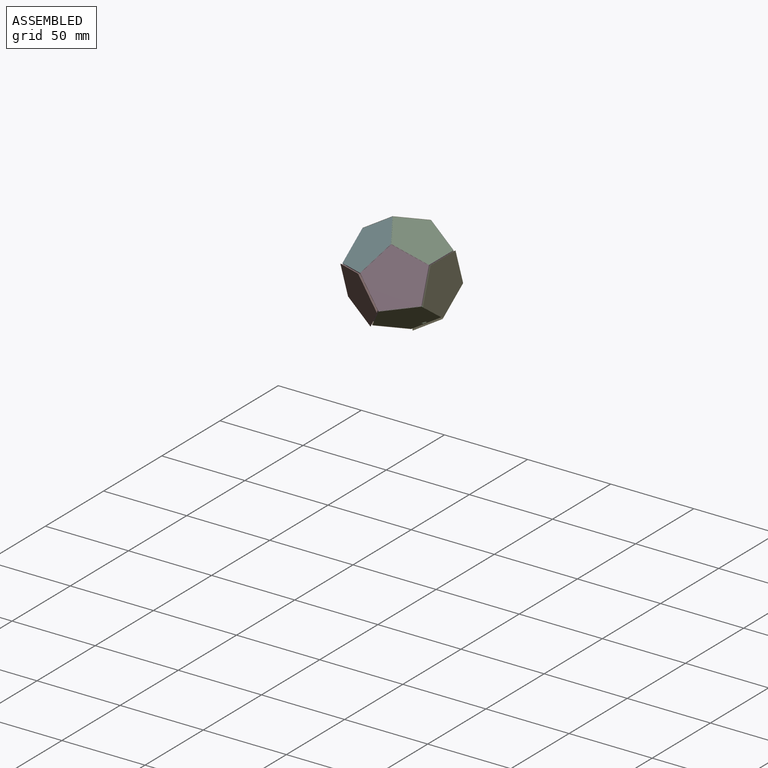
[diagram: assembled view]
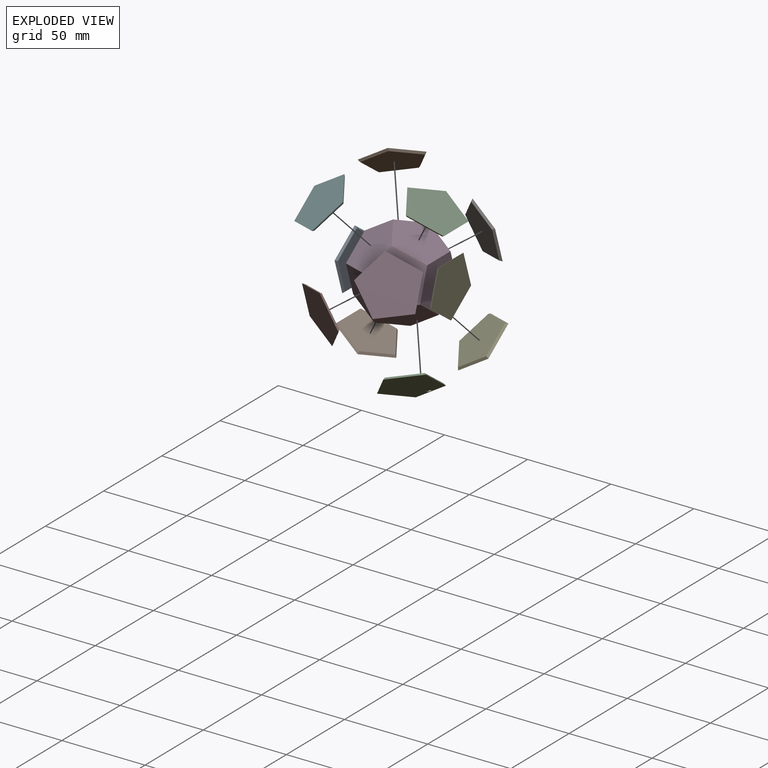
[diagram: exploded view]
GUIDED TOUR — MATED ASSEMBLY WITH SUBASSEMBLIES (Onshape document 57448838e4b0b9290a35721f, AutoMate assembly 57448838e4b0b9290a35721f_c312a48ab900fe0209bb2b89_70a571b310df9c3fa374a8cc_default)

This assembly has 14 component occurrences arranged in 13 top-level units: 12 individual components plus 1 subassembly (S0). The tour has two levels: first the top level, where each subassembly is treated as one rigid unit; then each subassembly is toured internally in its own section (nesting deeper than one subassembly level is flattened into its subassembly's section).

Components are labeled P0..P13 across the whole record; subassembly units are labeled S0..S0. A mate is a constraint between two units; its type names the relative motion it leaves free:
  FASTENED — locks the two components together rigidly (no relative motion),
  SLIDER — leaves translation along the listed axis free.
Axis/direction vectors are unit vectors and 'through' points are millimeter coordinates, both in the assembly's world frame.

TOP-LEVEL MATES (between units; each subassembly's internal mates are listed in its own section)
  1. SLIDER "Slider 6": P4 <-> P5, axis (0.447, 0.526, -0.724) through (9.37, 11.71, -16.11) mm
  2. SLIDER "Slider 1": P4 <-> P1, axis (-0.447, 0.526, 0.724) through (-10.55, 11.71, 16.11) mm
  3. SLIDER "Slider 7": P10 <-> P4, axis (0.447, 0.000, 0.894) through (-10.55, 0.00, -19.92) mm
  4. SLIDER "Slider 4": P4 <-> P13, axis (1.000, 0.000, 0.000) through (21.68, 0.00, 0.00) mm
  5. SLIDER "Slider 11": P4 <-> P12, axis (0.447, -0.851, 0.276) through (9.37, -18.94, 6.16) mm
  6. SLIDER "Slider 5": P4 <-> P9, axis (-0.447, 0.851, -0.276) through (-10.55, 18.94, -6.16) mm
  7. SLIDER "Slider 2": P4 <-> P11, axis (0.447, 0.000, 0.894) through (9.37, 0.00, 19.92) mm
  8. SLIDER "Slider 3": P7 <-> P4, axis (-0.447, -0.851, -0.276) through (9.37, 18.94, 6.16) mm
  9. SLIDER "Slider 10": P6 <-> P4, axis (0.447, 0.526, -0.724) through (-10.55, -11.71, 16.11) mm
  10. SLIDER "Slider 8": P0 <-> P4, axis (1.000, 0.000, 0.000) through (-22.86, 0.00, 0.00) mm
  11. SLIDER "Slider 12": P4 <-> S0, axis (0.447, -0.526, -0.724) through (9.37, -11.71, -16.11) mm
  12. SLIDER "Slider 9": P8 <-> P4, axis (0.447, 0.851, 0.276) through (-11.12, -20.02, -6.51) mm

TOP-LEVEL ASSEMBLY ORDER
  1. P6 — the base component [order verified]
  2. P1 [order verified]
  3. P11 [order verified]
  4. P4 [order verified]
  5. P12 [order verified]
  6. P10 [order verified]
  7. P0 [order verified]
  8. P7 [order verified]
  9. S0 [order verified]
  10. P5 [order verified]
  11. P9 [order verified]
  12. P13 [order verified]
  13. P8 [order verified]
(P11 verified with a relaxed clearance tolerance: the source model stores slight part interference there.)
Order-tag legend:
  [order verified] — this step's position reverses a verified removal order: the component was checked to insert without passing through the ones already placed.

Of the 14 component occurrences, 13 carry the full construction recipe — the FeatureScript program that regenerates the part's solid from scratch; the rest are supplied as boundary geometry only. Each toured unit is shown spotlighted twice — assembled, then exploded with a leader line back to its socket (green = recipe-attached component, orange = geometry-only, blue = subassembly unit; the rest desaturated gray).
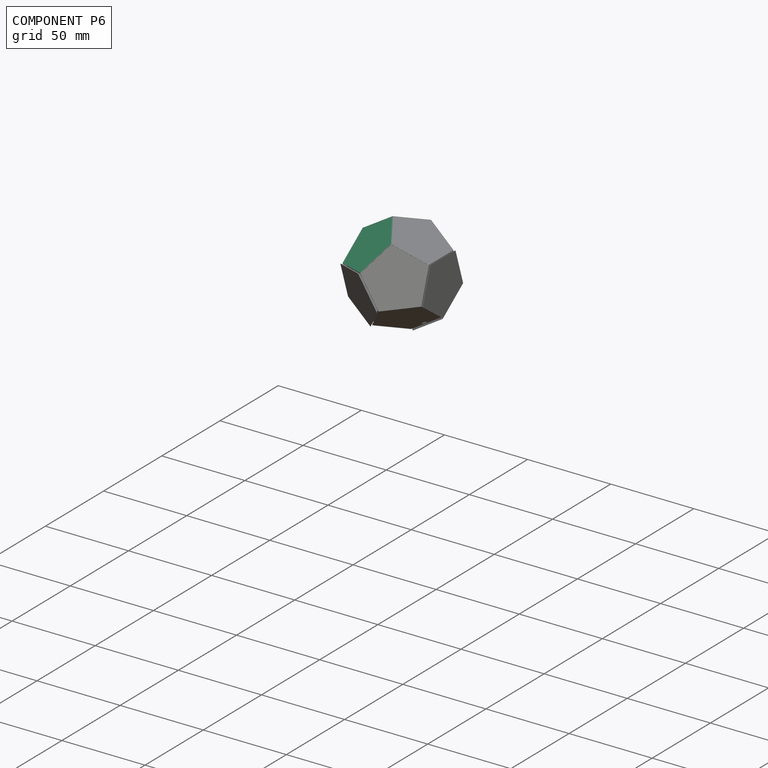
[diagram: component P6 — assembled]
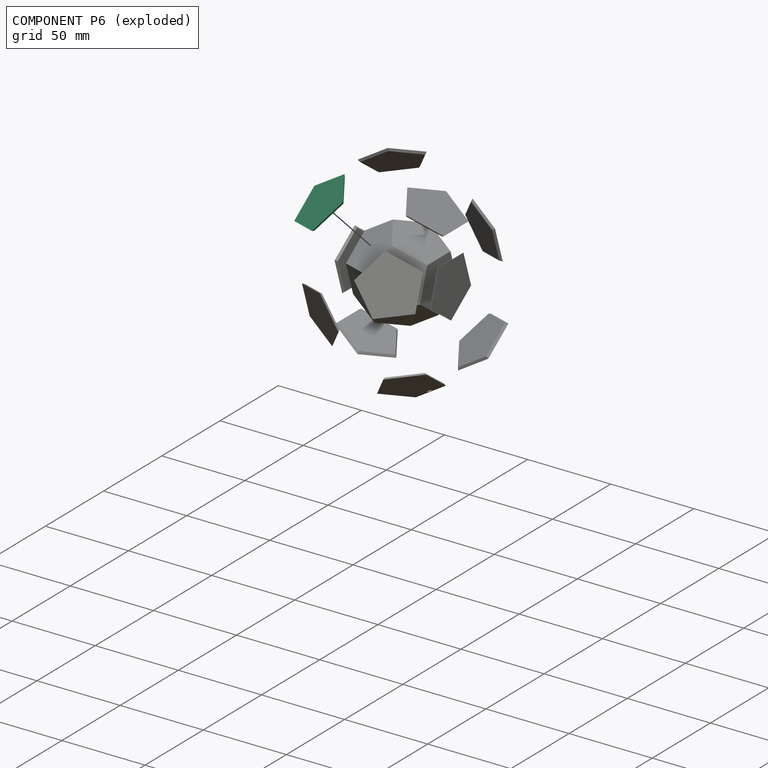
[diagram: component P6 — exploded]
COMPONENT P6 — same part as P0 (CADFS 00161702); its construction recipe is shown at P0.
Held by: SLIDER mate "Slider 10" to P4.
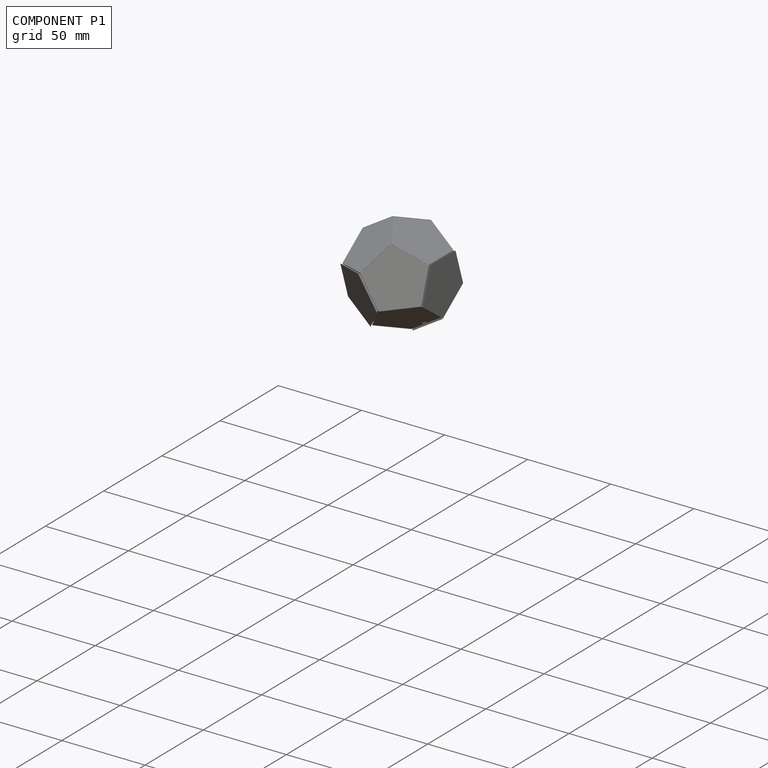
[diagram: component P1 — assembled]
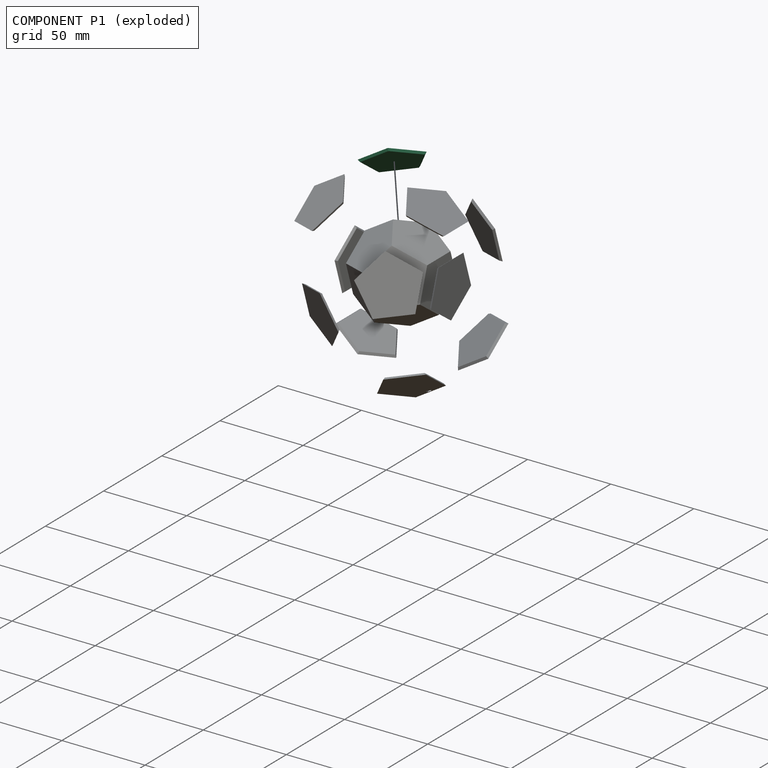
[diagram: component P1 — exploded]
COMPONENT P1 — same part as P0 (CADFS 00161702); its construction recipe is shown at P0.
Held by: SLIDER mate "Slider 1" to P4.
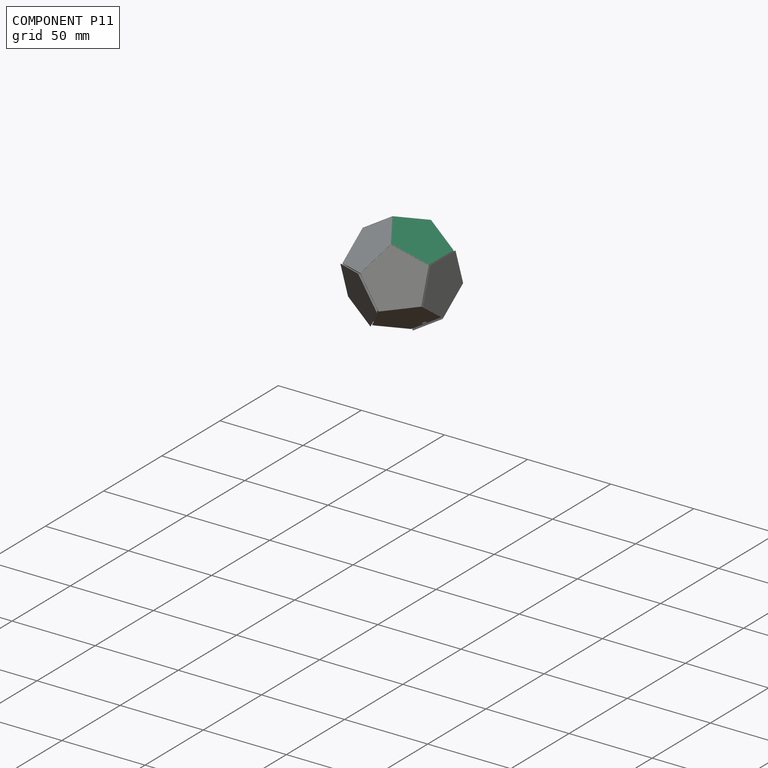
[diagram: component P11 — assembled]
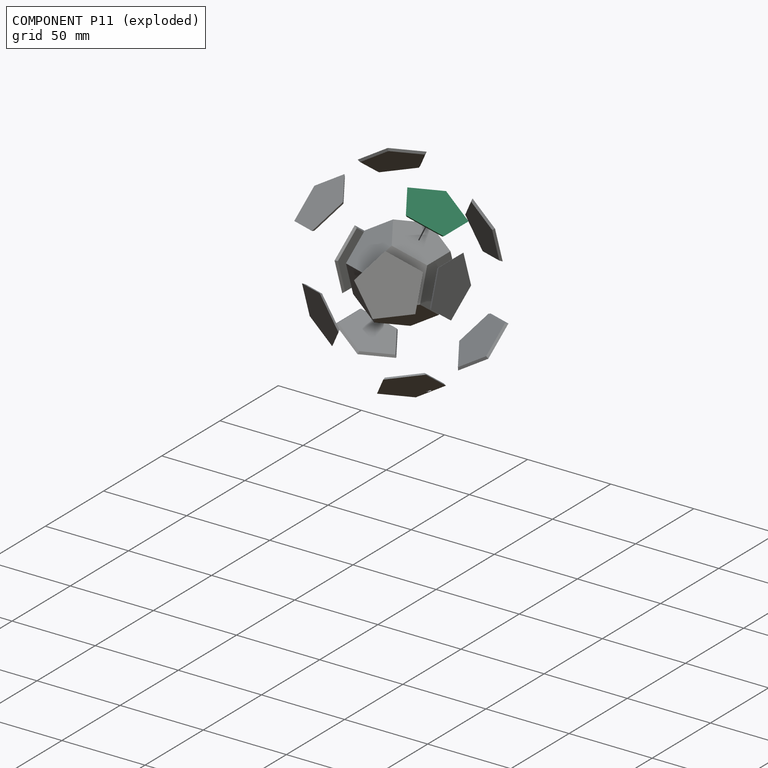
[diagram: component P11 — exploded]
COMPONENT P11 — same part as P0 (CADFS 00161702); its construction recipe is shown at P0.
Held by: SLIDER mate "Slider 2" to P4.
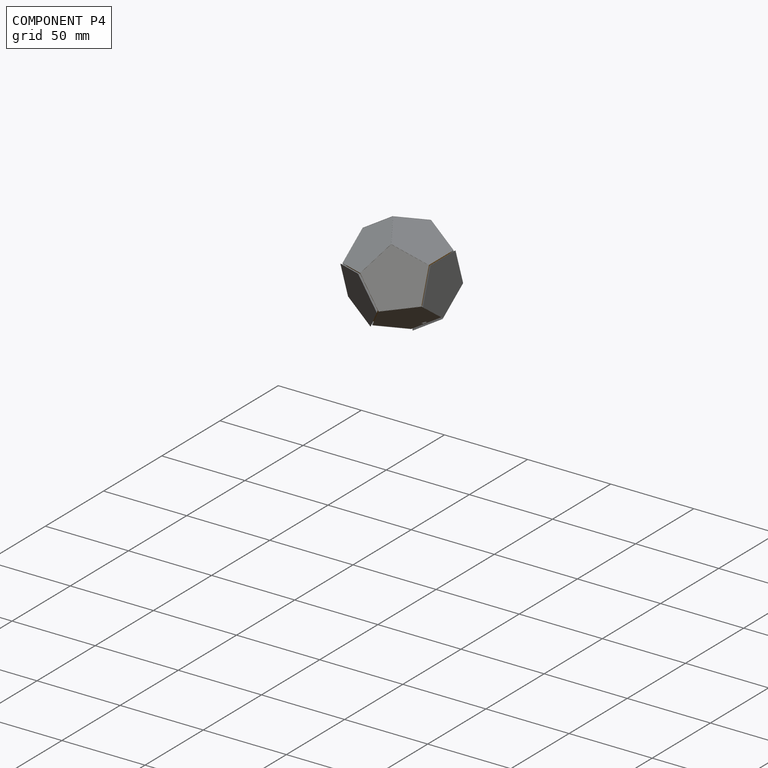
[diagram: component P4 — assembled]
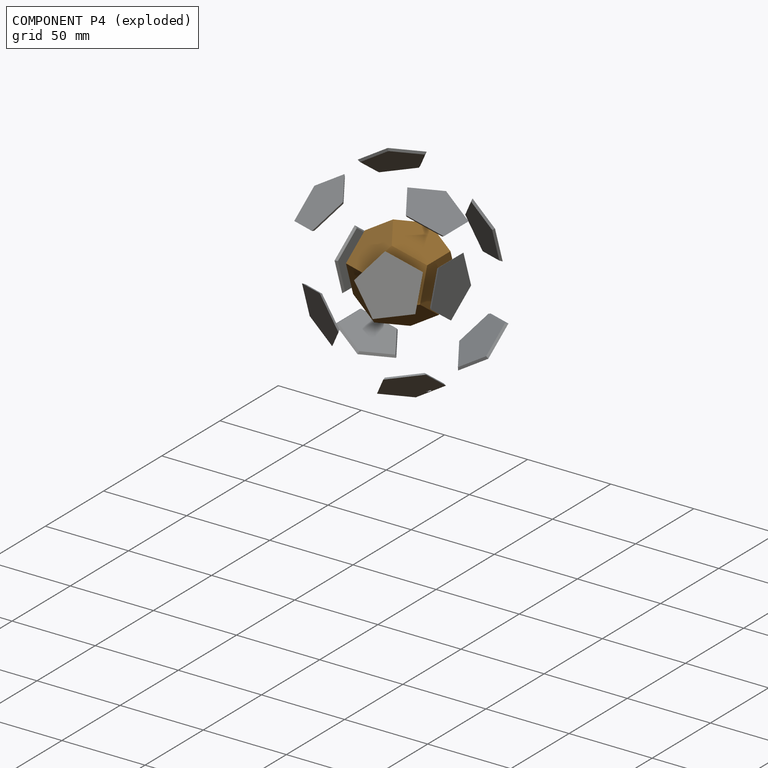
[diagram: component P4 — exploded]
COMPONENT P4 — geometry summary (no construction recipe available for this part):
  bounding box: 55.1 x 52.4 x 44.5 mm
  B-rep topology: 1 solid, 24 faces, 120 edges
  volume: 18675 mm^3 (15% of its bounding box)
  symmetry: 2-fold rotationally symmetric about the x axis; mirror-symmetric across its x mid-plane
Held by: SLIDER mate "Slider 6" to P5; SLIDER mate "Slider 1" to P1; SLIDER mate "Slider 7" to P10; SLIDER mate "Slider 4" to P13; SLIDER mate "Slider 11" to P12; SLIDER mate "Slider 5" to P9; SLIDER mate "Slider 2" to P11; SLIDER mate "Slider 3" to P7; SLIDER mate "Slider 10" to P6; SLIDER mate "Slider 8" to P0; SLIDER mate "Slider 12" to P2; SLIDER mate "Slider 9" to P8.
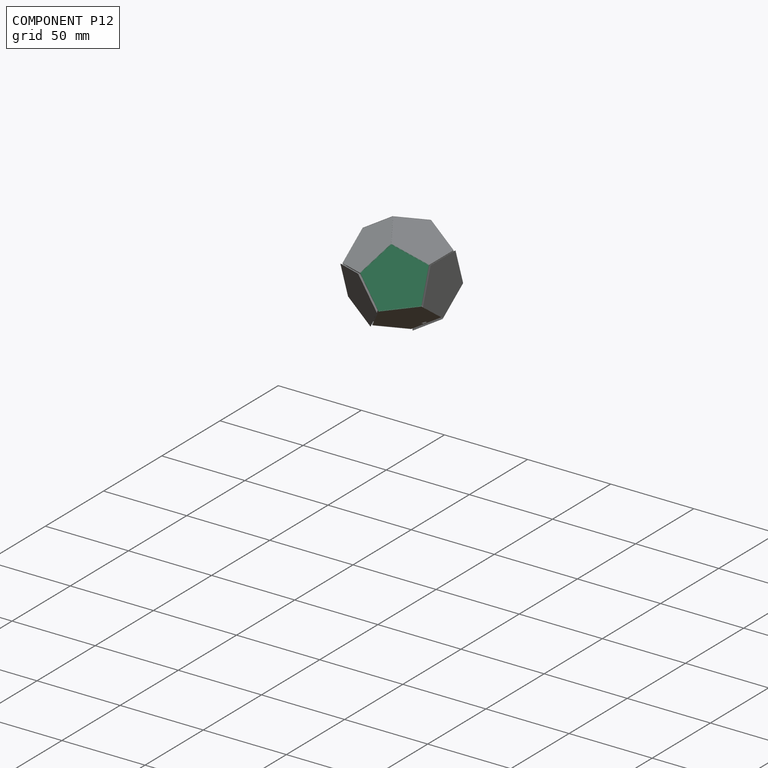
[diagram: component P12 — assembled]
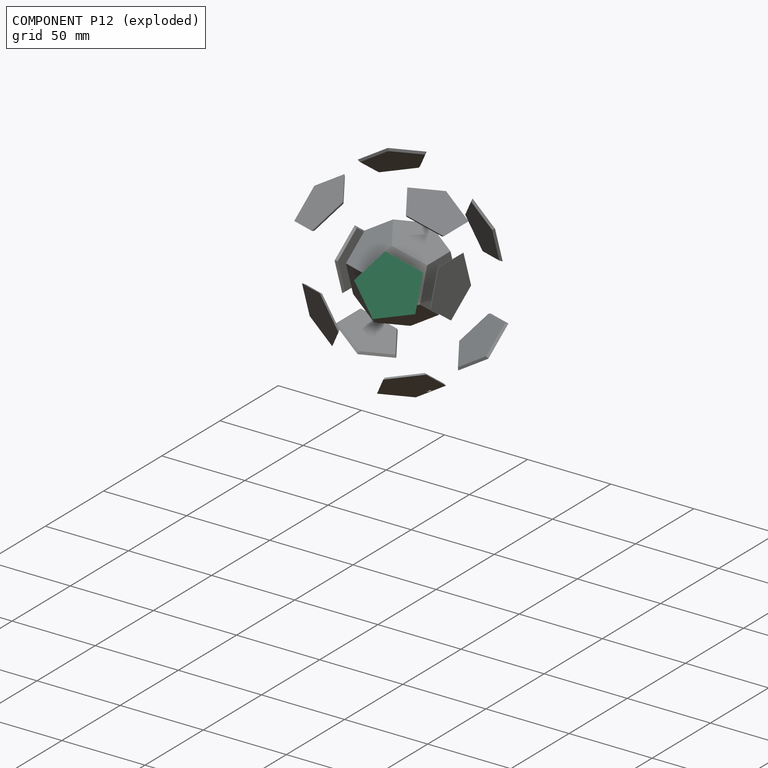
[diagram: component P12 — exploded]
COMPONENT P12 — same part as P0 (CADFS 00161702); its construction recipe is shown at P0.
Held by: SLIDER mate "Slider 11" to P4.
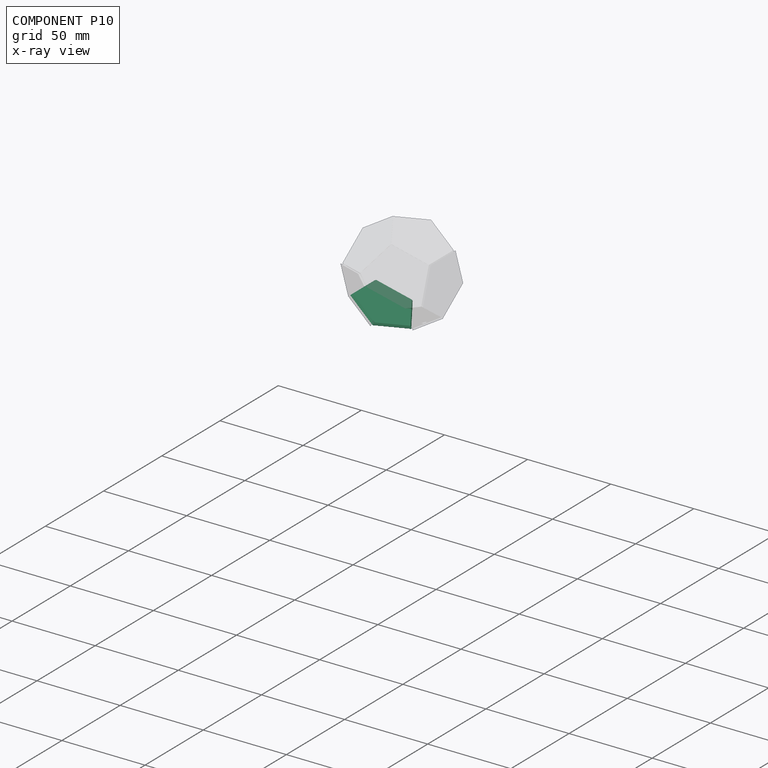
[diagram: component P10 — x-ray view]
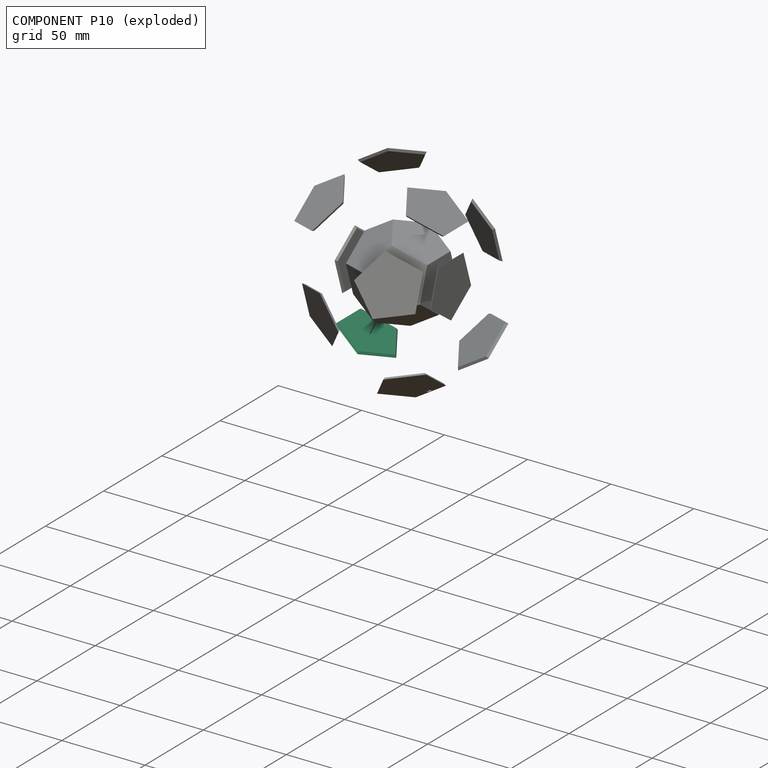
[diagram: component P10 — exploded]
COMPONENT P10 — same part as P0 (CADFS 00161702); its construction recipe is shown at P0.
Held by: SLIDER mate "Slider 7" to P4.
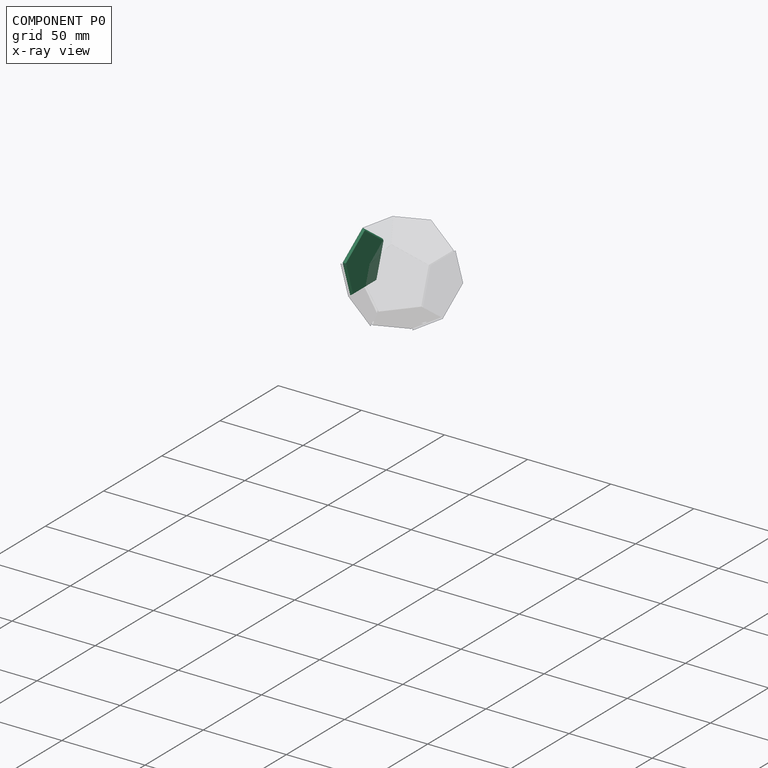
[diagram: component P0 — x-ray view]
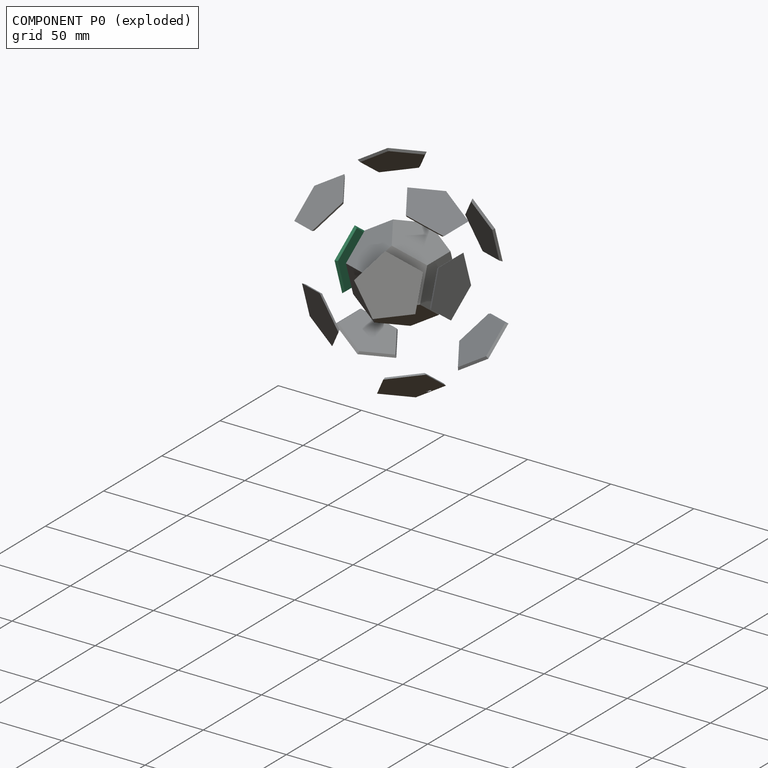
[diagram: component P0 — exploded]
COMPONENT P0 — recipe-attached (CADFS 00161702, mesh-verified: the recipe's output STEP matches this component's geometry to below the mesh-comparison resolution (tessellation chordal tolerance ~0.0715 mm)).
Held by: SLIDER mate "Slider 8" to P4.
Construction recipe (FeatureScript — the CAD program that rebuilds this solid; sketch coordinates are in the units given by the * unit suffixes, e.g. mm):

FeatureScript 1511;
import(path : "onshape/std/geometry.fs", version : "1511.0");
import(path : "onshape/std/common.fs", version : "1511.0");
const mm = millimeter;
const VERTEX = EntityType.VERTEX;
const EDGE = EntityType.EDGE;
const FACE = EntityType.FACE;
const BODY = EntityType.BODY;
function v(x, y){return vector(x, y);}
function OD(order){return orderDisambiguation(order);}
function OSD(set){return originalSetDisambiguation(set);}
function TD(topology){return topologyDisambiguation(topology);}
function TDD(query){return trueDependencyDisambiguation(query);}
function sQuery(a, b, c) {return sketchEntityQuery(a, b, c);}

annotation { "Feature Type Name" : "Feature", "Feature Type Description" : "" }
export const myFeature = defineFeature(function(context is Context, id is Id, definition is map)
    precondition{}
    {
        {
            var Q0;
            Q0=qCreatedBy(makeId("Top.planeOp"),FACE);
            var sketch = newSketch(context, id + "F0", { "sketchPlane" : qUnion([Q0])});
            skCircle(sketch, "E0.cCircle", {"center": v(0, 0) * mm, "radius": 17.01 * mm, "construction": true});
            skLineSegment(sketch, "E0.0", {"start": v(16.18, 5.26) * mm, "end": v(10, -13.76) * mm});
            skLineSegment(sketch, "E0.1", {"start": v(10, -13.76) * mm, "end": v(-10, -13.76) * mm});
            skLineSegment(sketch, "E0.2", {"start": v(-10, -13.76) * mm, "end": v(-16.18, 5.26) * mm});
            skLineSegment(sketch, "E0.3", {"start": v(-16.18, 5.26) * mm, "end": v(0, 17.01) * mm});
            skLineSegment(sketch, "E0.4", {"start": v(0, 17.01) * mm, "end": v(16.18, 5.26) * mm});
            skSolve(sketch);
        }
        {
            var Q0;
            Q0=makeQuery(id+"F0.imprint","IMPRINT",FACE,{"disambiguationData":[TD([[makeQuery(id+"F0.imprint","IMPRINT",EDGE,{"derivedFrom":sQuery(id+"F0.wireOp",EDGE,"E0.0")}),-1.0]])]});
            extrude(context, id + "F1", {"entities" : qUnion([Q0]), "depth" : 1.27 * mm, "hasDraft" : true, "draftAngle" : 36 * degree});
        }
    });
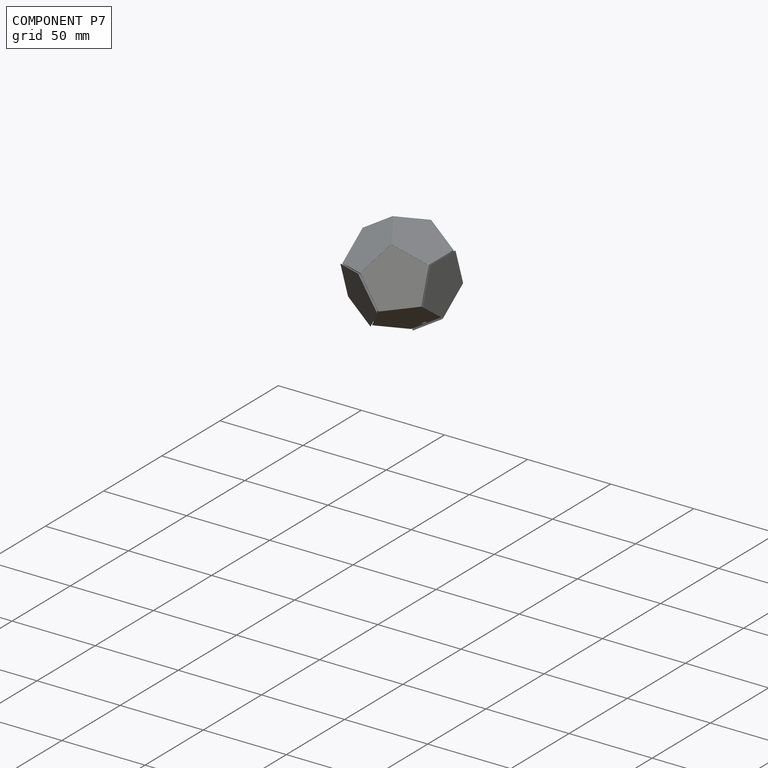
[diagram: component P7 — assembled]
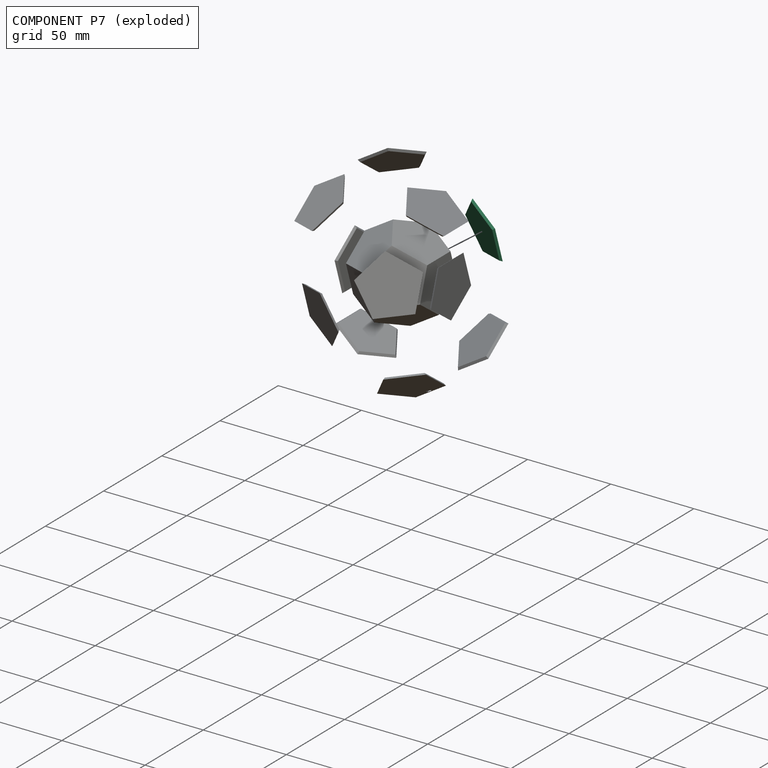
[diagram: component P7 — exploded]
COMPONENT P7 — same part as P0 (CADFS 00161702); its construction recipe is shown at P0.
Held by: SLIDER mate "Slider 3" to P4.
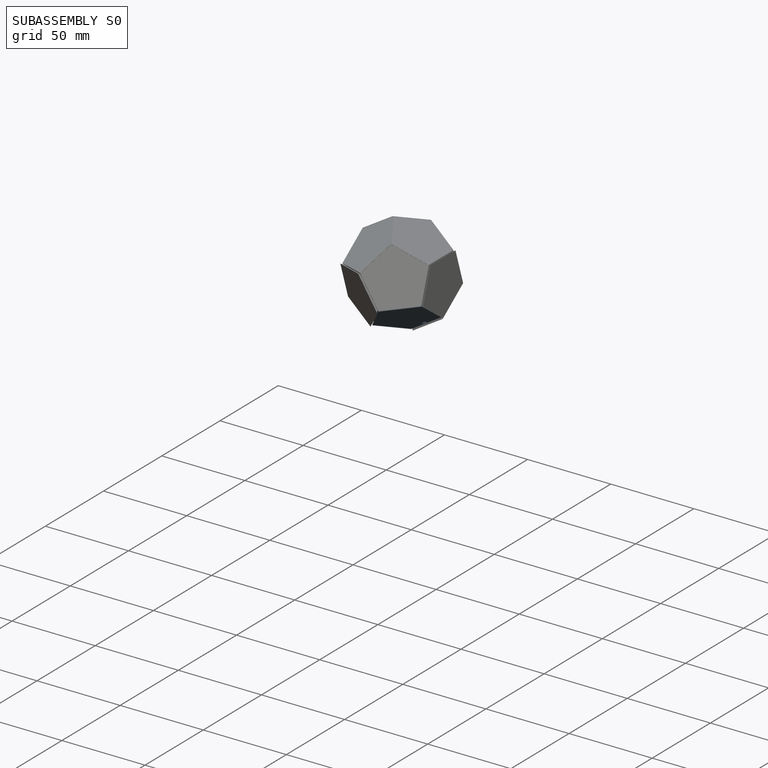
[diagram: subassembly S0 — assembled]
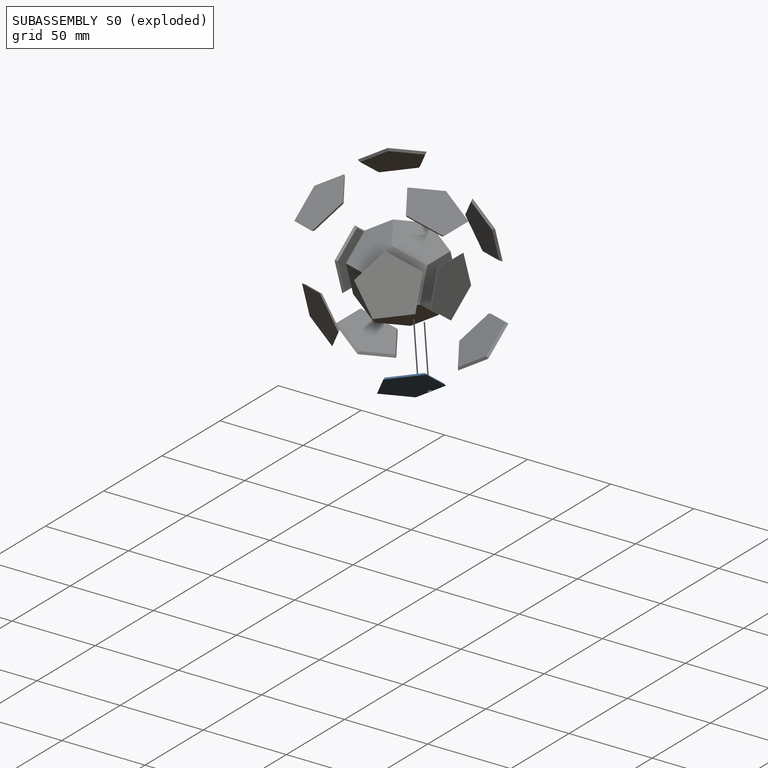
[diagram: subassembly S0 — exploded]
SUBASSEMBLY S0 — 2 components (P2, P3), of which 2 recipe-attached; toured below.
Held by: SLIDER mate "Slider 12" to P4.
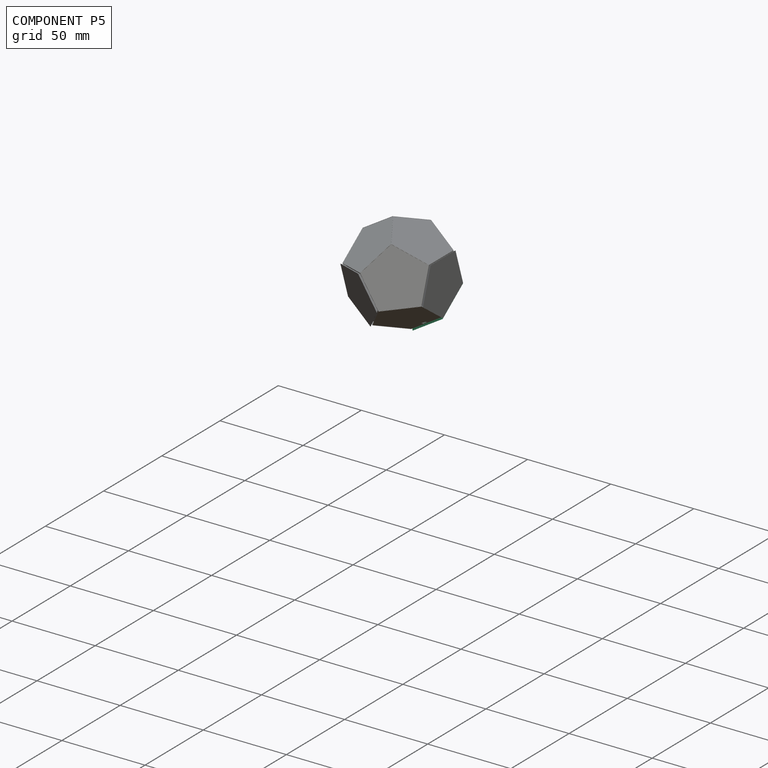
[diagram: component P5 — assembled]
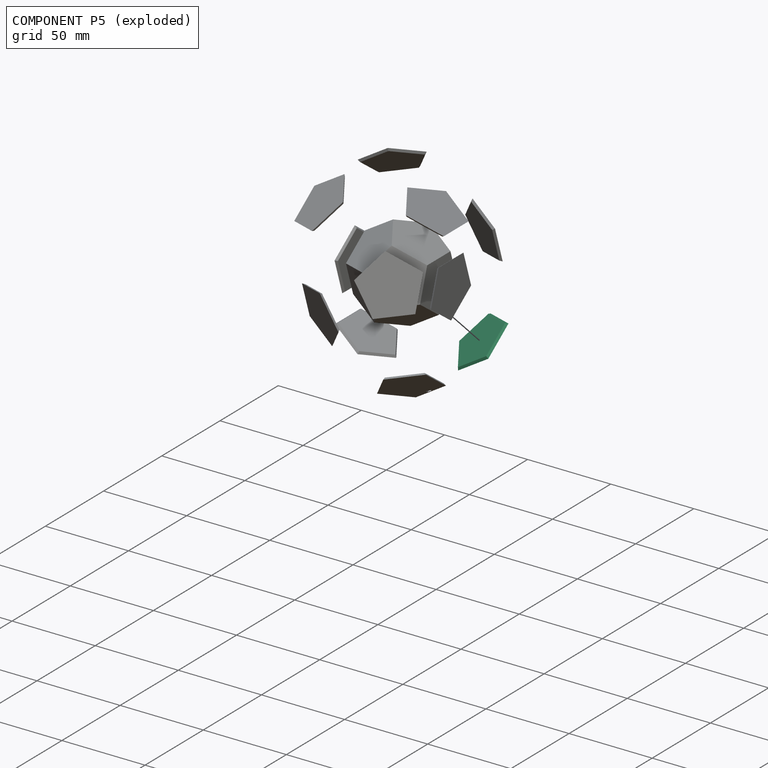
[diagram: component P5 — exploded]
COMPONENT P5 — same part as P0 (CADFS 00161702); its construction recipe is shown at P0.
Held by: SLIDER mate "Slider 6" to P4.
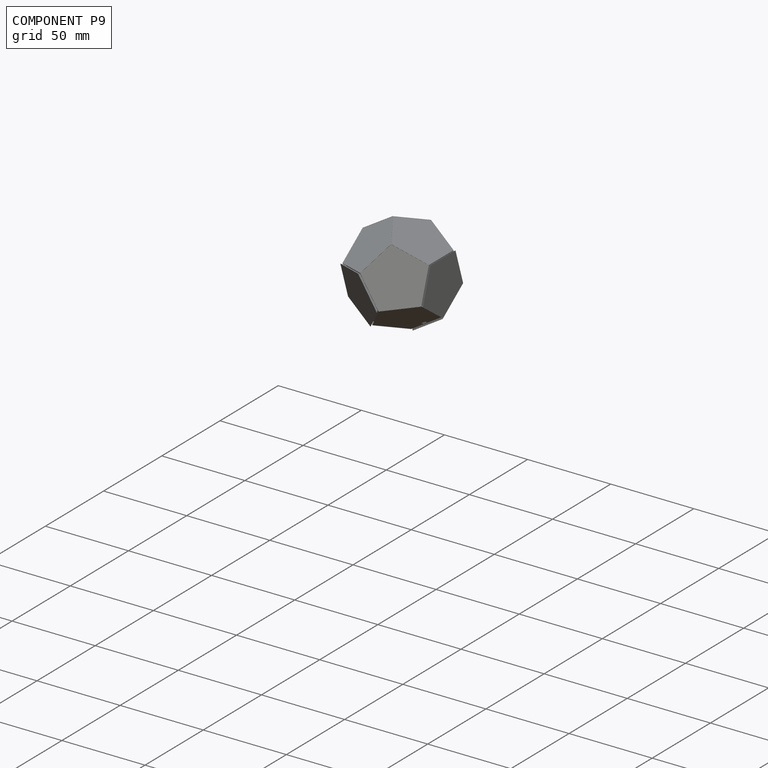
[diagram: component P9 — assembled]
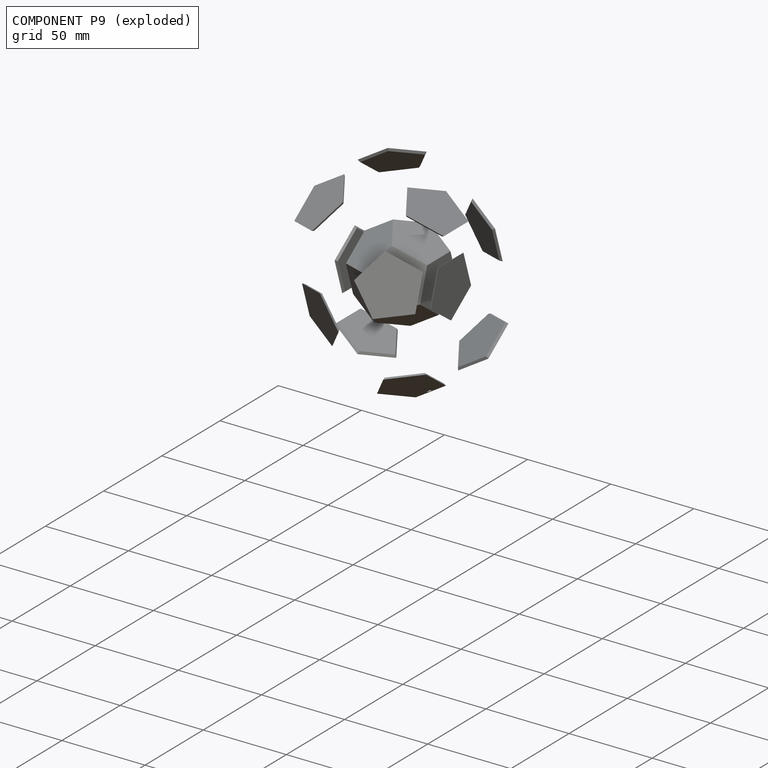
[diagram: component P9 — exploded]
COMPONENT P9 — same part as P0 (CADFS 00161702); its construction recipe is shown at P0.
Held by: SLIDER mate "Slider 5" to P4.
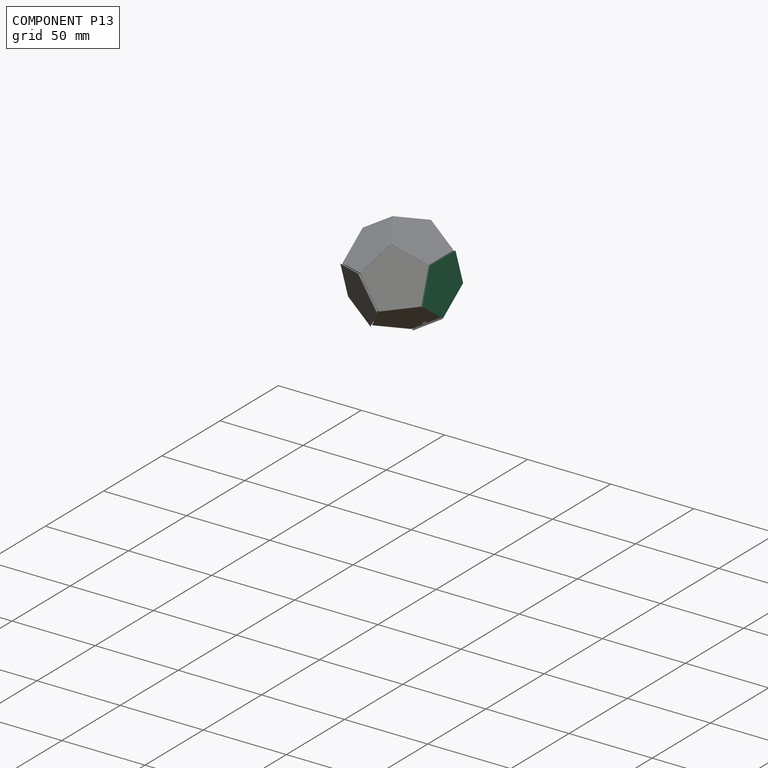
[diagram: component P13 — assembled]
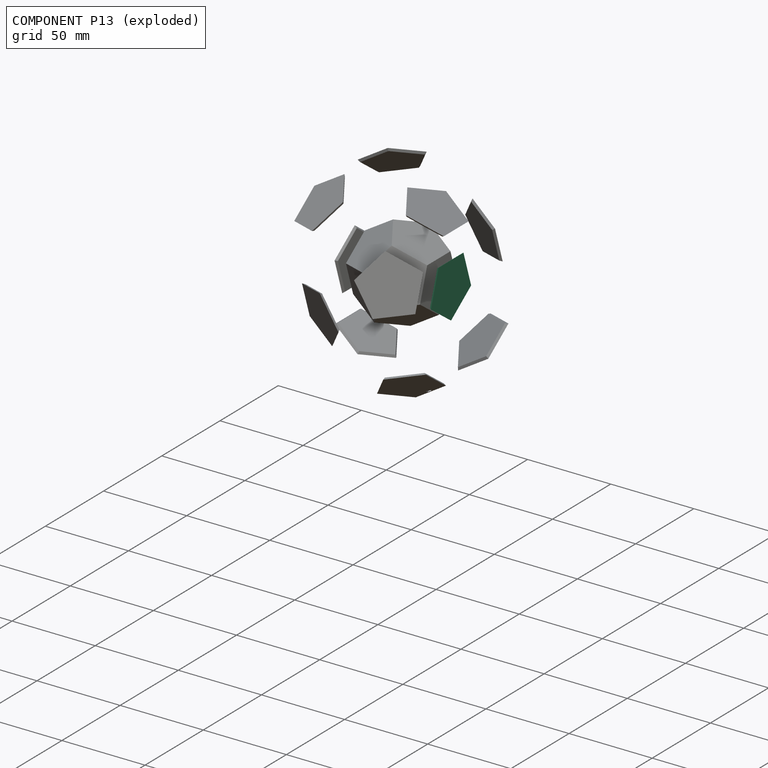
[diagram: component P13 — exploded]
COMPONENT P13 — same part as P0 (CADFS 00161702); its construction recipe is shown at P0.
Held by: SLIDER mate "Slider 4" to P4.
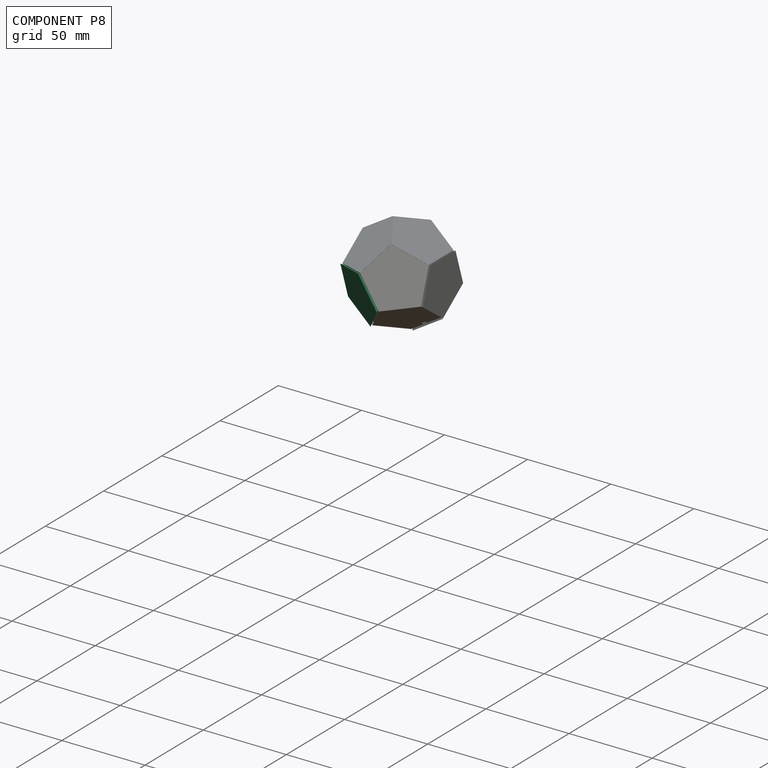
[diagram: component P8 — assembled]
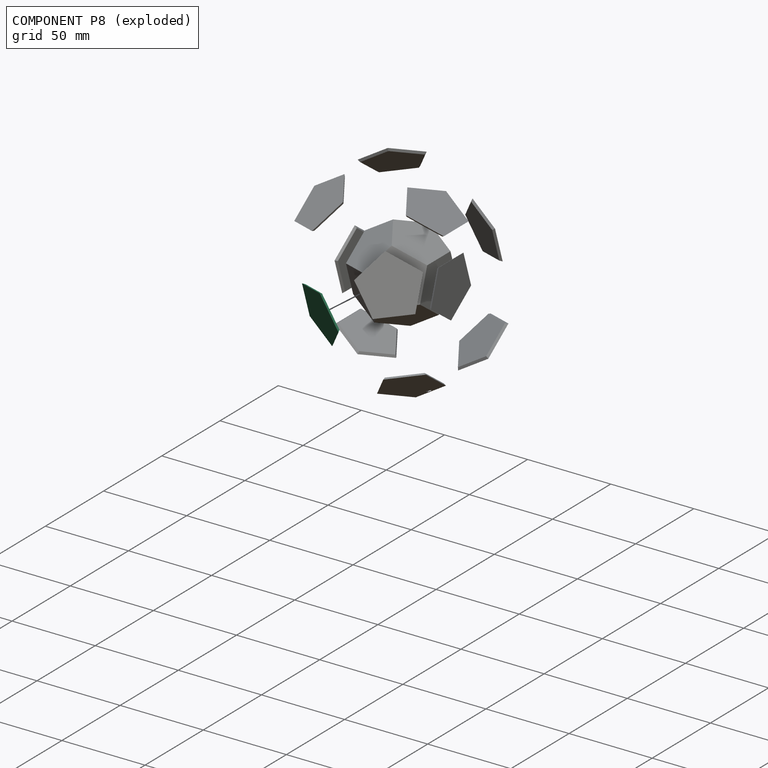
[diagram: component P8 — exploded]
COMPONENT P8 — same part as P0 (CADFS 00161702); its construction recipe is shown at P0.
Held by: SLIDER mate "Slider 9" to P4.
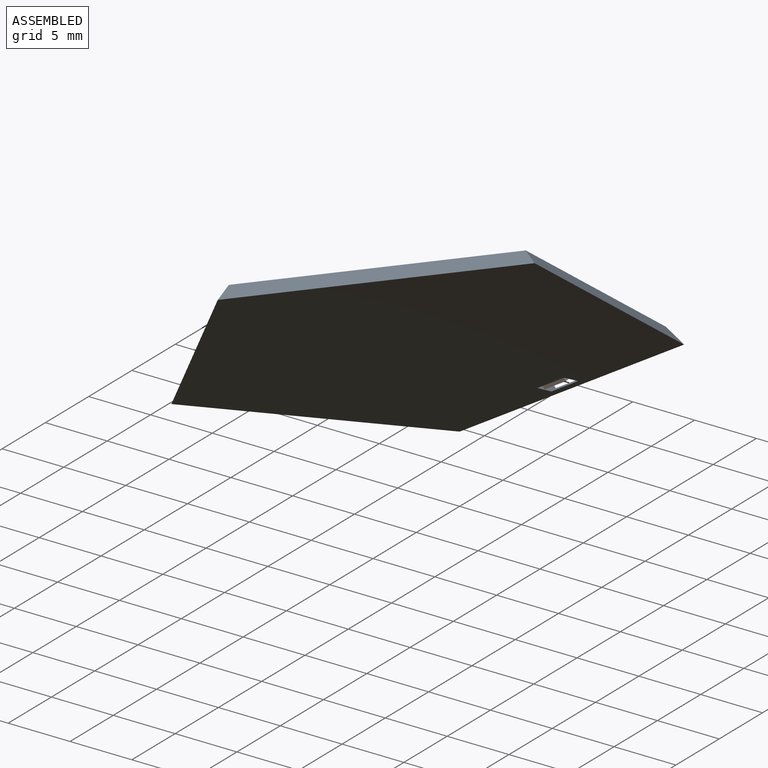
[diagram: subassembly S0 — assembled view]
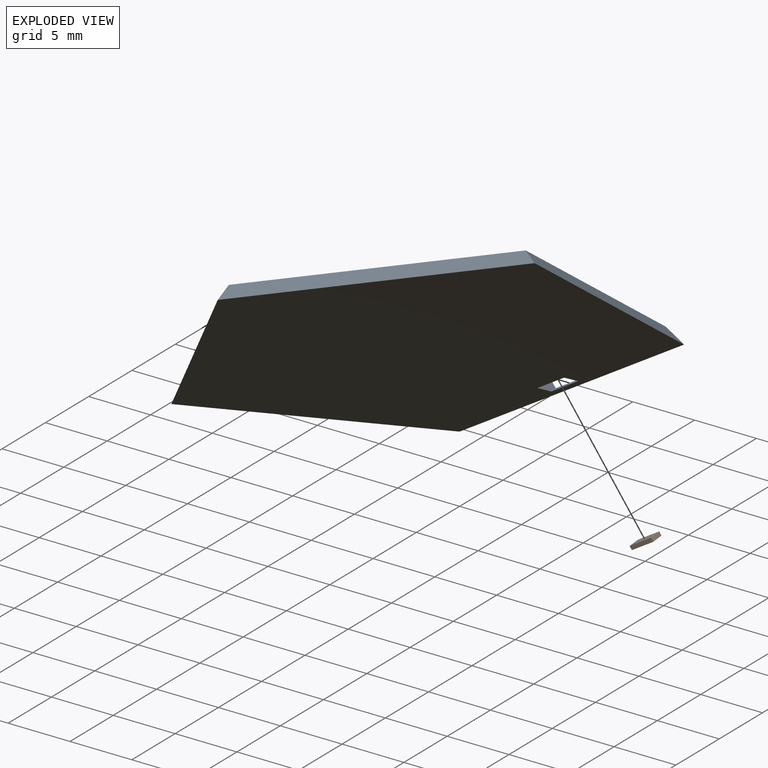
[diagram: subassembly S0 — exploded view]
SUBASSEMBLY S0 TOUR — 2 components, shown here in isolation at its own camera.

INTERNAL MATES
  1. FASTENED "Fastened 1": P3 <-> P2, direction (-0.524, -0.075, 0.848) through (13.42, -0.76, -22.68) mm
  2. FASTENED "Fastened 1": P3 <-> P2, direction (-0.524, -0.075, 0.848) through (13.42, -0.76, -22.68) mm

ASSEMBLY ORDER (within the subassembly)
  1. P2 — the base component [order verified]
  2. P3 [order verified]
Order-tag legend:
  [order verified] — this step's position reverses a verified removal order: the component was checked to insert without passing through the ones already placed.
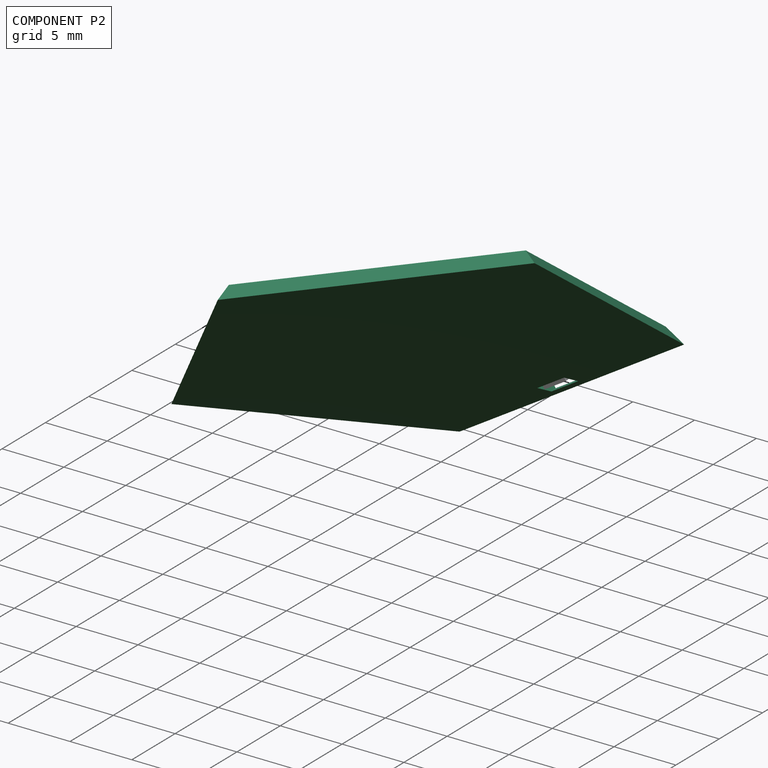
[diagram: component P2 — assembled]
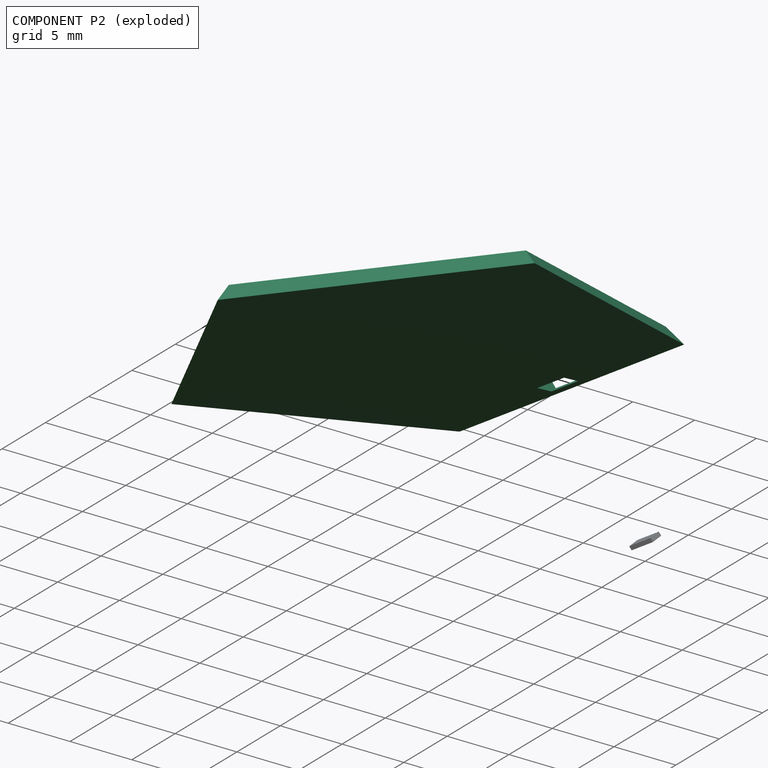
[diagram: component P2 — exploded]
COMPONENT P2 — recipe-attached (CADFS 00161703, mesh-verified: the recipe's output STEP matches this component's geometry to below the mesh-comparison resolution (tessellation chordal tolerance ~0.0715 mm)).
Held by: FASTENED mate "Fastened 1" to P3; FASTENED mate "Fastened 1" to P3.
Construction recipe (FeatureScript — the CAD program that rebuilds this solid; sketch coordinates are in the units given by the * unit suffixes, e.g. mm):

FeatureScript 1511;
import(path : "onshape/std/geometry.fs", version : "1511.0");
import(path : "onshape/std/common.fs", version : "1511.0");
const mm = millimeter;
const VERTEX = EntityType.VERTEX;
const EDGE = EntityType.EDGE;
const FACE = EntityType.FACE;
const BODY = EntityType.BODY;
function v(x, y){return vector(x, y);}
function OD(order){return orderDisambiguation(order);}
function OSD(set){return originalSetDisambiguation(set);}
function TD(topology){return topologyDisambiguation(topology);}
function TDD(query){return trueDependencyDisambiguation(query);}
function sQuery(a, b, c) {return sketchEntityQuery(a, b, c);}

annotation { "Feature Type Name" : "Feature", "Feature Type Description" : "" }
export const myFeature = defineFeature(function(context is Context, id is Id, definition is map)
    precondition{}
    {
        {
            var Q0;
            Q0=qCreatedBy(makeId("Top.planeOp"),FACE);
            var sketch = newSketch(context, id + "F0", { "sketchPlane" : qUnion([Q0])});
            skCircle(sketch, "E0.cCircle", {"center": v(0, 0) * mm, "radius": 17.01 * mm, "construction": true});
            skLineSegment(sketch, "E0.0", {"start": v(16.18, 5.26) * mm, "end": v(10, -13.76) * mm});
            skLineSegment(sketch, "E0.1", {"start": v(10, -13.76) * mm, "end": v(-10, -13.76) * mm});
            skLineSegment(sketch, "E0.2", {"start": v(-10, -13.76) * mm, "end": v(-16.18, 5.26) * mm});
            skLineSegment(sketch, "E0.3", {"start": v(-16.18, 5.26) * mm, "end": v(0, 17.01) * mm});
            skLineSegment(sketch, "E0.4", {"start": v(0, 17.01) * mm, "end": v(16.18, 5.26) * mm});
            skSolve(sketch);
        }
        {
            var Q0;
            Q0=makeQuery(id+"F0.imprint","IMPRINT",FACE,{"disambiguationData":[TD([[makeQuery(id+"F0.imprint","IMPRINT",EDGE,{"derivedFrom":sQuery(id+"F0.wireOp",EDGE,"E0.0")}),-1.0]])]});
            extrude(context, id + "F1", {"entities" : qUnion([Q0]), "depth" : 1.27 * mm, "hasDraft" : true, "draftAngle" : 36 * degree});
        }
        {
            var Q0;
            Q0=makeQuery(id+"F1.opExtrude","SWEPT_FACE",FACE,{"disambiguationData":[OSD([sQuery(id+"F0.wireOp",EDGE,"E0.1")])]});
            var sketch = newSketch(context, id + "F2", { "sketchPlane" : qUnion([Q0])});
            skLineSegment(sketch, "E1.bottom", {"start": v(1.27, 9.27) * mm, "end": v(-1.27, 9.27) * mm});
            skLineSegment(sketch, "E1.top", {"start": v(1.27, 8.5) * mm, "end": v(-1.27, 8.5) * mm});
            skLineSegment(sketch, "E1.left", {"start": v(1.27, 9.27) * mm, "end": v(1.27, 8.5) * mm});
            skLineSegment(sketch, "E1.right", {"start": v(-1.27, 9.27) * mm, "end": v(-1.27, 8.5) * mm});
            skPoint(sketch, "E1.middle", {"position": v(0, 8.9) * mm});
            skSolve(sketch);
        }
        {
            var Q0;
            Q0=makeQuery(id+"F2.imprint","IMPRINT",FACE,{"disambiguationData":[TD([[makeQuery(id+"F2.imprint","IMPRINT",EDGE,{"derivedFrom":sQuery(id+"F2.wireOp",EDGE,"E1.bottom")}),1.0]])]});
            extrude(context, id + "F3", {"entities" : qUnion([Q0]), "operationType" : NewBodyOperationType.REMOVE, "oppositeDirection" : true, "depth" : 25.4 * mm});
        }
    });
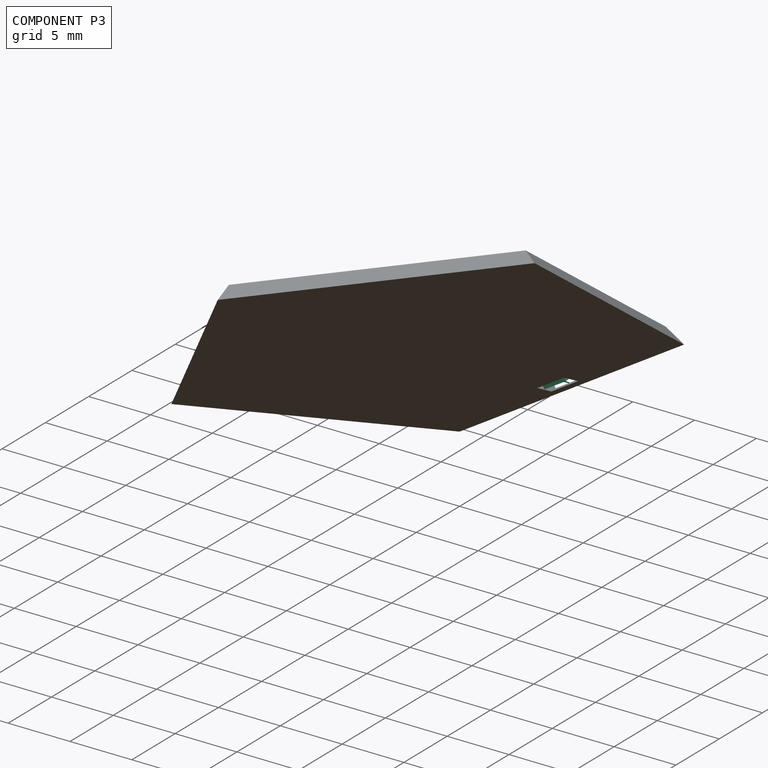
[diagram: component P3 — assembled]
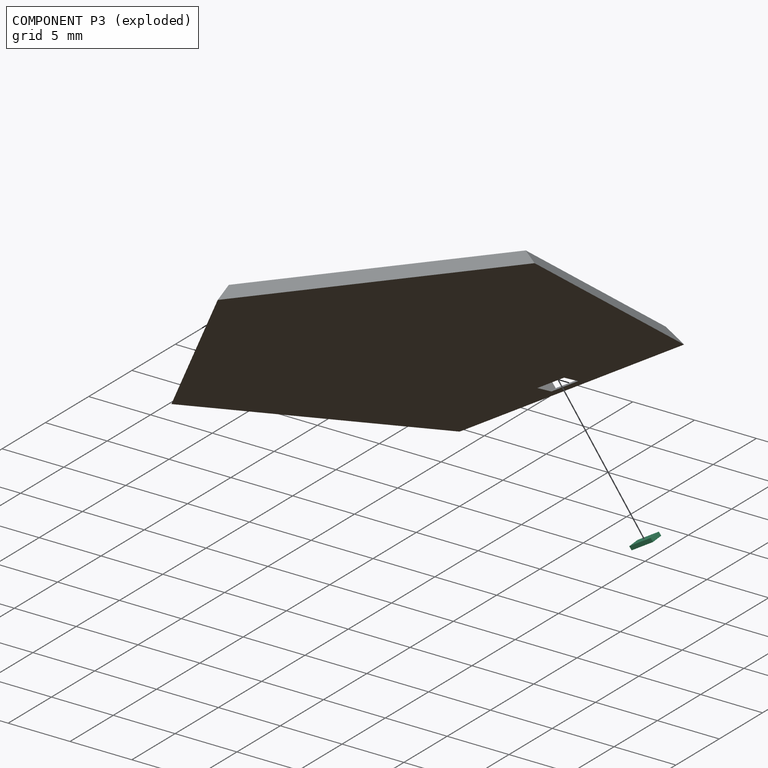
[diagram: component P3 — exploded]
COMPONENT P3 — recipe-attached (CADFS 00161704, mesh-verified: the recipe's output STEP matches this component's geometry to below the mesh-comparison resolution (tessellation chordal tolerance ~0.005 mm)).
Held by: FASTENED mate "Fastened 1" to P2; FASTENED mate "Fastened 1" to P2.
Construction recipe (FeatureScript — the CAD program that rebuilds this solid; sketch coordinates are in the units given by the * unit suffixes, e.g. mm):

FeatureScript 1511;
import(path : "onshape/std/geometry.fs", version : "1511.0");
import(path : "onshape/std/common.fs", version : "1511.0");
const mm = millimeter;
const VERTEX = EntityType.VERTEX;
const EDGE = EntityType.EDGE;
const FACE = EntityType.FACE;
const BODY = EntityType.BODY;
function v(x, y){return vector(x, y);}
function OD(order){return orderDisambiguation(order);}
function OSD(set){return originalSetDisambiguation(set);}
function TD(topology){return topologyDisambiguation(topology);}
function TDD(query){return trueDependencyDisambiguation(query);}
function sQuery(a, b, c) {return sketchEntityQuery(a, b, c);}

annotation { "Feature Type Name" : "Feature", "Feature Type Description" : "" }
export const myFeature = defineFeature(function(context is Context, id is Id, definition is map)
    precondition{}
    {
        {
            var Q0;
            Q0=qCreatedBy(makeId("Top.planeOp"),FACE);
            var sketch = newSketch(context, id + "F0", { "sketchPlane" : qUnion([Q0])});
            skLineSegment(sketch, "E0.bottom", {"start": v(1.02, 0.5) * mm, "end": v(-1.02, 0.5) * mm});
            skLineSegment(sketch, "E0.top", {"start": v(1.02, -0.5) * mm, "end": v(-1.02, -0.5) * mm});
            skLineSegment(sketch, "E0.left", {"start": v(1.02, 0.5) * mm, "end": v(1.02, -0.5) * mm});
            skLineSegment(sketch, "E0.right", {"start": v(-1.02, 0.5) * mm, "end": v(-1.02, -0.5) * mm});
            skPoint(sketch, "E0.middle", {"position": v(0, 0) * mm});
            skSolve(sketch);
        }
        {
            var Q0;
            Q0=makeQuery(id+"F0.imprint","IMPRINT",FACE,{"disambiguationData":[TD([[makeQuery(id+"F0.imprint","IMPRINT",EDGE,{"derivedFrom":sQuery(id+"F0.wireOp",EDGE,"E0.bottom")}),1.0]])]});
            extrude(context, id + "F1", {"entities" : qUnion([Q0]), "depth" : 0.32 * mm});
        }
    });
PROVENANCE & LICENSES
Assembly (occurrences, transforms, mates, per-part STEP geometry): AutoMate dataset, Zenodo record 7776208, CC0.
Construction recipes: CADFS (HuggingFace VladPyatov/CADFS, CC-BY-4.0, layered over the ABC dataset), FeatureScript reconstruction programs keyed by ABC model id.
Join: ABC meta listings map ABC model id -> Onshape documentId; within a shared document, parts are matched by geometric signature (bounding-box dims + volume at 0.1% relative tolerance, exact B-rep face/solid counts).
Verification: 13 of this assembly's 14 components carry a recipe attachment, and every attachment is mesh-verified: the CADFS STEP and the AutoMate member STEP were compared as meshes in their shared local frame (symmetric sampled-point-to-mesh distance); worst across the 13 attachments: below the mesh-comparison resolution (tessellation chordal tolerance ~0.0715 mm) on a 48 mm part.
Renders: orthographic iso camera (az 35 / el 25); the floor grid conveys scale (grid pitch printed in each image; no ruler). In the exploded view each component is displaced by its stored offset vector: the offsets alone carry the explosion direction (mate normal/axis signs are not orientation cues and do not encode it), and separation distances are assigned per mate-chain, not proportionally to assembly-order depth.
